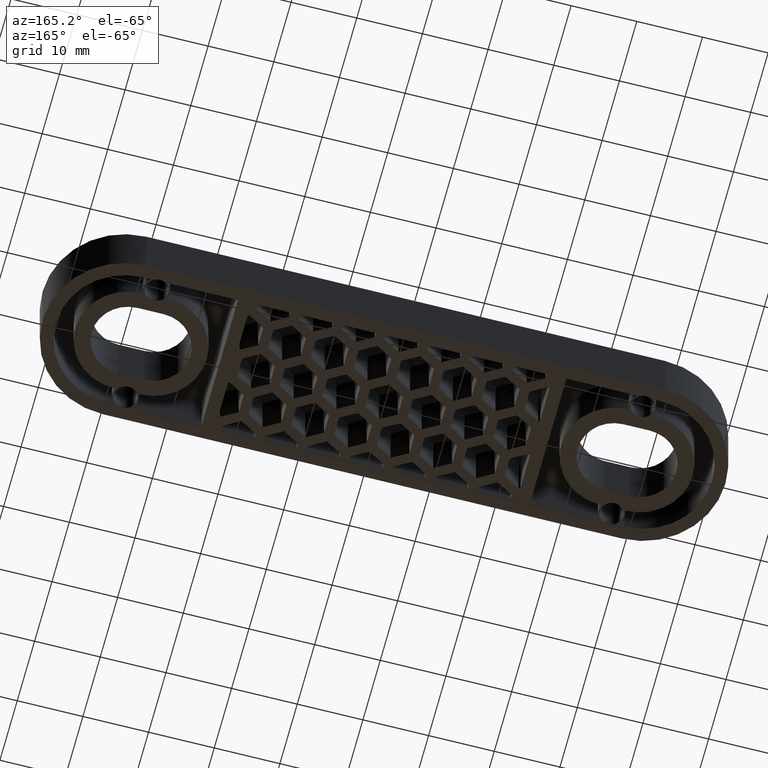
[diagram: clean part render]
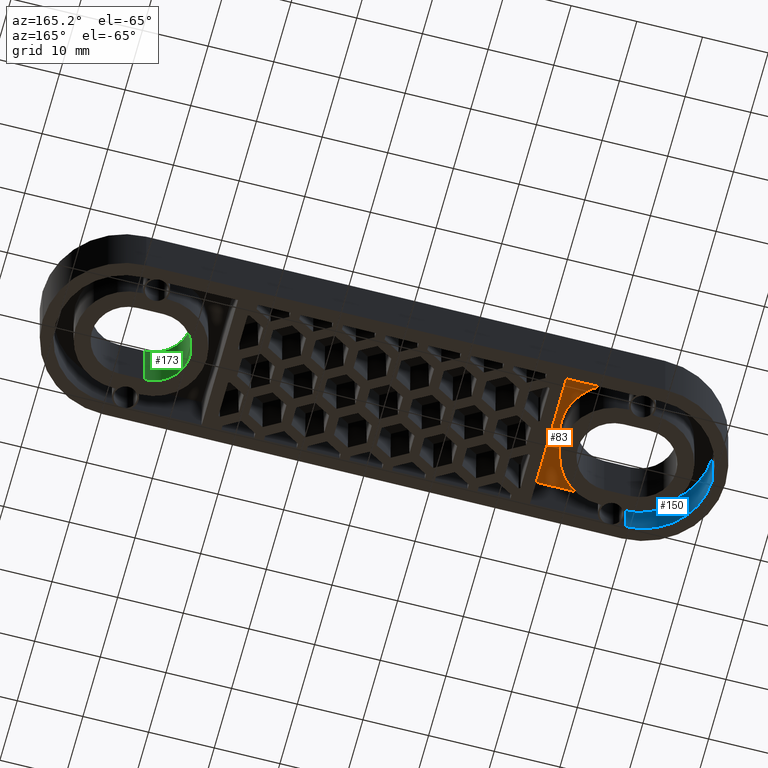
[diagram: same view with three faces highlighted in distinct colors, each labeled with its STEP entity id]
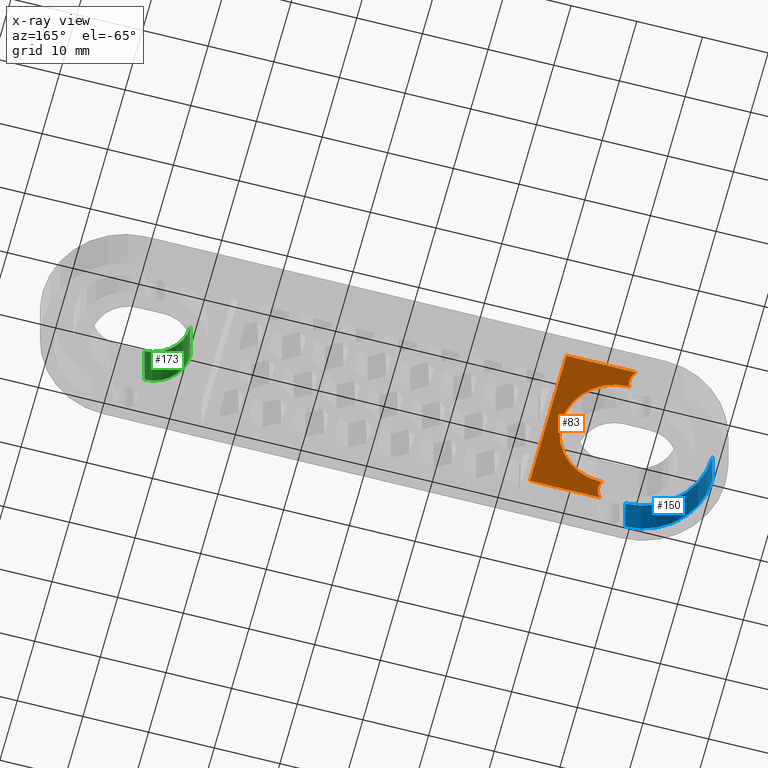
[diagram: x-ray of the same camera — body ghosted, the three highlighted faces saturated]
A machine part, auxiliary view with three faces highlighted in distinct colors.
The next image is the same camera in x-ray (body ghosted, the three faces saturated) — at least one of them is partly hidden behind the body in this view.
Their STEP definitions:

[orange] entity #83 — the highlighted planar face has unit normal (0, 0, 1).
#83 = ADVANCED_FACE( '', ( #453 ), #454, .F. );
#453 = FACE_OUTER_BOUND( '', #1219, .T. );
#454 = PLANE( '', #1220 );
#1219 = EDGE_LOOP( '', ( #2066, #2067, #2068, #2069, #2070, #2071, #2072, #2073, #2074 ) );
#1220 = AXIS2_PLACEMENT_3D( '', #2075, #2076, #2077 );
#2066 = ORIENTED_EDGE( '', *, *, #4864, .F. );
#2067 = ORIENTED_EDGE( '', *, *, #4865, .F. );
#2068 = ORIENTED_EDGE( '', *, *, #4866, .F. );
#2069 = ORIENTED_EDGE( '', *, *, #4867, .F. );
#2070 = ORIENTED_EDGE( '', *, *, #4868, .F. );
#2071 = ORIENTED_EDGE( '', *, *, #4869, .F. );
#2072 = ORIENTED_EDGE( '', *, *, #4870, .F. );
#2073 = ORIENTED_EDGE( '', *, *, #4871, .F. );
#2074 = ORIENTED_EDGE( '', *, *, #4872, .F. );
#2075 = CARTESIAN_POINT( '', ( -39.5000000000000, 1.08981833973898E-014, 7.99999999999997 ) );
#2076 = DIRECTION( '', ( 0.000000000000000, 6.12303176911189E-017, 1.00000000000000 ) );
#2077 = DIRECTION( '', ( 1.00000000000000, 0.000000000000000, 0.000000000000000 ) );
#4864 = EDGE_CURVE( '', #5818, #5819, #5820, .T. );
#4865 = EDGE_CURVE( '', #5821, #5818, #5822, .T. );
#4866 = EDGE_CURVE( '', #5823, #5821, #5824, .F. );
#4867 = EDGE_CURVE( '', #5825, #5823, #5826, .F. );
#4868 = EDGE_CURVE( '', #5827, #5825, #5828, .T. );
#4869 = EDGE_CURVE( '', #5829, #5827, #5830, .T. );
#4870 = EDGE_CURVE( '', #5831, #5829, #5832, .T. );
#4871 = EDGE_CURVE( '', #5833, #5831, #5834, .T. );
#4872 = EDGE_CURVE( '', #5819, #5833, #5835, .T. );
#5818 = VERTEX_POINT( '', #7350 );
#5819 = VERTEX_POINT( '', #7351 );
#5820 = CIRCLE( '', #7352, 1.99999999999995 );
#5821 = VERTEX_POINT( '', #7353 );
#5822 = LINE( '', #7354, #7355 );
#5823 = VERTEX_POINT( '', #7356 );
#5824 = CIRCLE( '', #7357, 8.00000000000000 );
#5825 = VERTEX_POINT( '', #7358 );
#5826 = CIRCLE( '', #7359, 8.00000000000000 );
#5827 = VERTEX_POINT( '', #7360 );
#5828 = LINE( '', #7361, #7362 );
#5829 = VERTEX_POINT( '', #7363 );
#5830 = CIRCLE( '', #7364, 1.99999999999995 );
#5831 = VERTEX_POINT( '', #7365 );
#5832 = LINE( '', #7366, #7367 );
#5833 = VERTEX_POINT( '', #7368 );
#5834 = LINE( '', #7369, #7370 );
#5835 = LINE( '', #7371, #7372 );
#7350 = CARTESIAN_POINT( '', ( -35.2679491924305, -8.00000000000000, 7.99999999999997 ) );
#7351 = CARTESIAN_POINT( '', ( -35.6771243444674, -10.5000000000000, 7.99999999999997 ) );
#7352 = AXIS2_PLACEMENT_3D( '', #9576, #9577, #9578 );
#7353 = CARTESIAN_POINT( '', ( -35.0000000000000, -8.00000000000000, 7.99999999999997 ) );
#7354 = CARTESIAN_POINT( '', ( -39.5000000000000, -8.00000000000000, 7.99999999999997 ) );
#7355 = VECTOR( '', #9579, 1000.00000000000 );
#7356 = CARTESIAN_POINT( '', ( -27.0000000000000, 7.42873644543617E-015, 7.99999999999997 ) );
#7357 = AXIS2_PLACEMENT_3D( '', #9580, #9581, #9582 );
#7358 = CARTESIAN_POINT( '', ( -35.0000000000000, 8.00000000000000, 7.99999999999997 ) );
#7359 = AXIS2_PLACEMENT_3D( '', #9583, #9584, #9585 );
#7360 = CARTESIAN_POINT( '', ( -35.2679491924306, 8.00000000000000, 7.99999999999997 ) );
#7361 = CARTESIAN_POINT( '', ( -39.5000000000000, 8.00000000000000, 7.99999999999997 ) );
#7362 = VECTOR( '', #9586, 1000.00000000000 );
#7363 = CARTESIAN_POINT( '', ( -35.6771243444674, 10.5000000000000, 7.99999999999997 ) );
#7364 = AXIS2_PLACEMENT_3D( '', #9587, #9588, #9589 );
#7365 = CARTESIAN_POINT( '', ( -25.0000000000000, 10.5000000000000, 7.99999999999997 ) );
#7366 = CARTESIAN_POINT( '', ( -25.0000000000000, 10.5000000000000, 7.99999999999997 ) );
#7367 = VECTOR( '', #9590, 1000.00000000000 );
#7368 = CARTESIAN_POINT( '', ( -25.0000000000000, -10.5000000000000, 7.99999999999997 ) );
#7369 = CARTESIAN_POINT( '', ( -25.0000000000000, -10.5000000000000, 7.99999999999997 ) );
#7370 = VECTOR( '', #9591, 1000.00000000000 );
#7371 = CARTESIAN_POINT( '', ( -39.5000000000000, -10.5000000000000, 7.99999999999997 ) );
#7372 = VECTOR( '', #9592, 1000.00000000000 );
#9576 = CARTESIAN_POINT( '', ( -36.9999999999995, -8.99999999999983, 7.99999999999930 ) );
#9577 = DIRECTION( '', ( -6.84227765783639E-049, -6.12303176911189E-017, -1.00000000000000 ) );
#9578 = DIRECTION( '', ( 1.00000000000000, 6.12303176911187E-017, -3.74915180455533E-033 ) );
#9579 = DIRECTION( '', ( -1.00000000000000, -5.78241158658936E-017, 3.54058898467673E-033 ) );
#9580 = CARTESIAN_POINT( '', ( -35.0000000000000, -4.71432788640147E-015, 7.99999999999997 ) );
#9581 = DIRECTION( '', ( 0.000000000000000, 6.12303176911189E-017, 1.00000000000000 ) );
#9582 = DIRECTION( '', ( 0.000000000000000, -1.00000000000000, 6.12303176911189E-017 ) );
#9583 = CARTESIAN_POINT( '', ( -35.0000000000000, -1.24488093444786E-015, 7.99999999999997 ) );
#9584 = DIRECTION( '', ( 0.000000000000000, 6.12303176911189E-017, 1.00000000000000 ) );
#9585 = DIRECTION( '', ( 0.000000000000000, -1.00000000000000, 6.12303176911189E-017 ) );
#9586 = DIRECTION( '', ( 1.00000000000000, 5.78241158658936E-017, -3.54058898467673E-033 ) );
#9587 = CARTESIAN_POINT( '', ( -36.9999999999995, 8.99999999999986, 7.99999999999930 ) );
#9588 = DIRECTION( '', ( -6.84227765783639E-049, -6.12303176911189E-017, -1.00000000000000 ) );
#9589 = DIRECTION( '', ( 1.00000000000000, 6.12303176911187E-017, -3.74915180455533E-033 ) );
#9590 = DIRECTION( '', ( -1.00000000000000, 0.000000000000000, 0.000000000000000 ) );
#9591 = DIRECTION( '', ( 0.000000000000000, 1.00000000000000, -6.12303176911189E-017 ) );
#9592 = DIRECTION( '', ( 1.00000000000000, 0.000000000000000, 0.000000000000000 ) );

[blue] entity #150 — the highlighted cylindrical surface (partial cylindrical patch) has radius 10.5 mm, axis along (0, -0, -1).
#150 = ADVANCED_FACE( '', ( #587 ), #588, .F. );
#587 = FACE_OUTER_BOUND( '', #1353, .T. );
#588 = CYLINDRICAL_SURFACE( '', #1354, 10.5000000000000 );
#1353 = EDGE_LOOP( '', ( #2583, #2584, #2585, #2586 ) );
#1354 = AXIS2_PLACEMENT_3D( '', #2587, #2588, #2589 );
#2583 = ORIENTED_EDGE( '', *, *, #5129, .T. );
#2584 = ORIENTED_EDGE( '', *, *, #5128, .T. );
#2585 = ORIENTED_EDGE( '', *, *, #4854, .T. );
#2586 = ORIENTED_EDGE( '', *, *, #4863, .F. );
#2587 = CARTESIAN_POINT( '', ( -39.5000000000000, -1.26329068733579E-014, -7.99999999985812 ) );
#2588 = DIRECTION( '', ( 0.000000000000000, -6.12303176911189E-017, -1.00000000000000 ) );
#2589 = DIRECTION( '', ( 1.00000000000000, 0.000000000000000, 0.000000000000000 ) );
#4854 = EDGE_CURVE( '', #5800, #5798, #5801, .T. );
#4863 = EDGE_CURVE( '', #5815, #5798, #5817, .T. );
#5128 = EDGE_CURVE( '', #6304, #5800, #6306, .T. );
#5129 = EDGE_CURVE( '', #5815, #6304, #6307, .T. );
#5798 = VERTEX_POINT( '', #7324 );
#5800 = VERTEX_POINT( '', #7327 );
#5801 = CIRCLE( '', #7328, 10.5000000000000 );
#5815 = VERTEX_POINT( '', #7345 );
#5817 = LINE( '', #7348, #7349 );
#6304 = VERTEX_POINT( '', #8081 );
#6306 = LINE( '', #8083, #8084 );
#6307 = CIRCLE( '', #8085, 10.5000000000000 );
#7324 = CARTESIAN_POINT( '', ( -39.5000000000000, -10.5000000000000, 7.99999999999997 ) );
#7327 = CARTESIAN_POINT( '', ( -50.0000000000000, 4.89842541528949E-016, 7.99999999999997 ) );
#7328 = AXIS2_PLACEMENT_3D( '', #9556, #9557, #9558 );
#7345 = CARTESIAN_POINT( '', ( -39.5000000000000, -10.5000000000000, -1.32348694720577E-014 ) );
#7348 = CARTESIAN_POINT( '', ( -39.5000000000000, -10.5000000000000, -7.99999999985812 ) );
#7349 = VECTOR( '', #9575, 1000.00000000000 );
#8081 = CARTESIAN_POINT( '', ( -50.0000000000000, -8.49741356322415E-031, -1.38777878078145E-014 ) );
#8083 = CARTESIAN_POINT( '', ( -50.0000000000000, -4.89842541520264E-016, -7.99999999985812 ) );
#8084 = VECTOR( '', #9878, 1000.00000000000 );
#8085 = AXIS2_PLACEMENT_3D( '', #9879, #9880, #9881 );
#9556 = CARTESIAN_POINT( '', ( -39.5000000000000, -1.16532217903087E-014, 7.99999999999997 ) );
#9557 = DIRECTION( '', ( 0.000000000000000, 6.12303176911189E-017, 1.00000000000000 ) );
#9558 = DIRECTION( '', ( 0.000000000000000, 1.00000000000000, -6.12303176911189E-017 ) );
#9575 = DIRECTION( '', ( 0.000000000000000, 6.12303176911189E-017, 1.00000000000000 ) );
#9878 = DIRECTION( '', ( 0.000000000000000, 6.12303176911189E-017, 1.00000000000000 ) );
#9879 = CARTESIAN_POINT( '', ( -39.5000000000000, -1.21430643318377E-014, -1.38777878078145E-014 ) );
#9880 = DIRECTION( '', ( 0.000000000000000, -6.12303176911189E-017, -1.00000000000000 ) );
#9881 = DIRECTION( '', ( 0.000000000000000, 1.00000000000000, -6.12303176911189E-017 ) );

[green] entity #173 — the highlighted cylindrical surface (partial cylindrical patch) has radius 5.5 mm, axis along (0, -0, -1).
#173 = ADVANCED_FACE( '', ( #633 ), #634, .F. );
#633 = FACE_OUTER_BOUND( '', #1399, .T. );
#634 = CYLINDRICAL_SURFACE( '', #1400, 5.49999999999999 );
#1399 = EDGE_LOOP( '', ( #2744, #2745, #2746, #2747 ) );
#1400 = AXIS2_PLACEMENT_3D( '', #2748, #2749, #2750 );
#2744 = ORIENTED_EDGE( '', *, *, #5160, .F. );
#2745 = ORIENTED_EDGE( '', *, *, #5169, .F. );
#2746 = ORIENTED_EDGE( '', *, *, #5167, .T. );
#2747 = ORIENTED_EDGE( '', *, *, #4817, .T. );
#2748 = CARTESIAN_POINT( '', ( 35.0000000000000, 8.67361676758086E-015, -1.00000000086142E-005 ) );
#2749 = DIRECTION( '', ( 0.000000000000000, -6.12303176911189E-017, -1.00000000000000 ) );
#2750 = DIRECTION( '', ( 0.000000000000000, -1.00000000000000, 6.12303176911189E-017 ) );
#4817 = EDGE_CURVE( '', #5731, #5729, #5732, .T. );
#5160 = EDGE_CURVE( '', #6349, #5729, #6351, .T. );
#5167 = EDGE_CURVE( '', #6361, #5731, #6362, .T. );
#5169 = EDGE_CURVE( '', #6361, #6349, #6364, .T. );
#5729 = VERTEX_POINT( '', #7228 );
#5731 = VERTEX_POINT( '', #7231 );
#5732 = CIRCLE( '', #7232, 5.49999999999999 );
#6349 = VERTEX_POINT( '', #8142 );
#6351 = LINE( '', #8145, #8146 );
#6361 = VERTEX_POINT( '', #8160 );
#6362 = LINE( '', #8161, #8162 );
#6364 = CIRCLE( '', #8164, 5.49999999999999 );
#7228 = CARTESIAN_POINT( '', ( 35.0000000000000, -5.49999999999998, 9.99999999999998 ) );
#7231 = CARTESIAN_POINT( '', ( 29.5000000000000, 8.49002807076435E-015, 9.99999999999998 ) );
#7232 = AXIS2_PLACEMENT_3D( '', #9499, #9500, #9501 );
#8142 = CARTESIAN_POINT( '', ( 35.0000000000000, -5.49999999999998, -1.00000000082775E-005 ) );
#8145 = CARTESIAN_POINT( '', ( 35.0000000000000, -5.49999999999998, -1.00000000082775E-005 ) );
#8146 = VECTOR( '', #9940, 1000.00000000000 );
#8160 = CARTESIAN_POINT( '', ( 29.5000000000000, 7.80625502959245E-015, -1.00000000086142E-005 ) );
#8161 = CARTESIAN_POINT( '', ( 29.5000000000000, 7.80625502959245E-015, -1.00000000086142E-005 ) );
#8162 = VECTOR( '', #9951, 1000.00000000000 );
#8164 = AXIS2_PLACEMENT_3D( '', #9955, #9956, #9957 );
#9499 = CARTESIAN_POINT( '', ( 35.0000000000000, 9.28592055679522E-015, 9.99999999999998 ) );
#9500 = DIRECTION( '', ( 0.000000000000000, 6.12303176911189E-017, 1.00000000000000 ) );
#9501 = DIRECTION( '', ( 0.000000000000000, -1.00000000000000, 6.12303176911189E-017 ) );
#9940 = DIRECTION( '', ( 0.000000000000000, 6.12303176911189E-017, 1.00000000000000 ) );
#9951 = DIRECTION( '', ( 0.000000000000000, 6.12303176911189E-017, 1.00000000000000 ) );
#9955 = CARTESIAN_POINT( '', ( 35.0000000000000, 8.67361676758086E-015, -1.00000000086142E-005 ) );
#9956 = DIRECTION( '', ( 0.000000000000000, 6.12303176911189E-017, 1.00000000000000 ) );
#9957 = DIRECTION( '', ( 0.000000000000000, -1.00000000000000, 6.12303176911189E-017 ) );